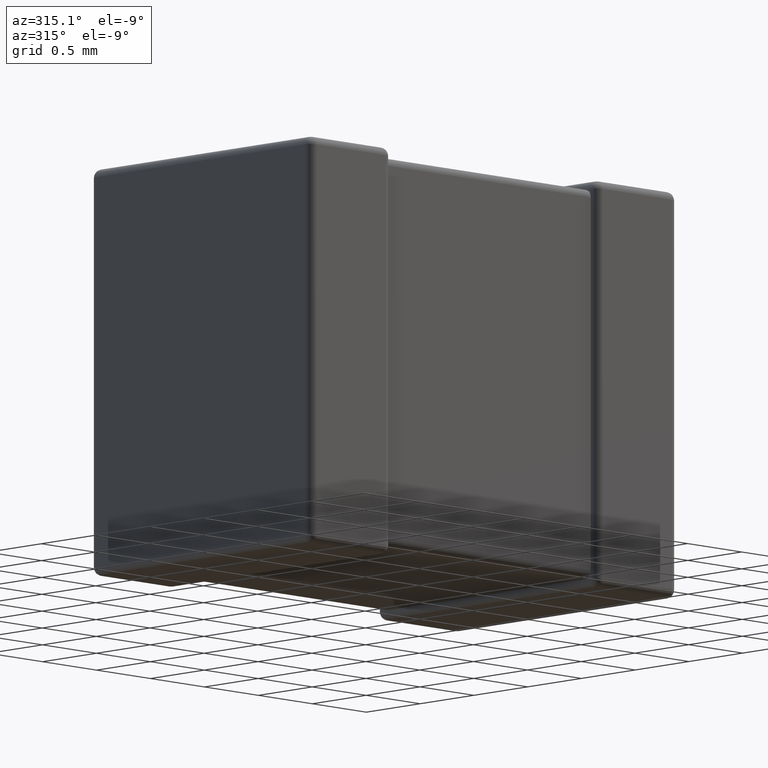
[diagram: clean part render]
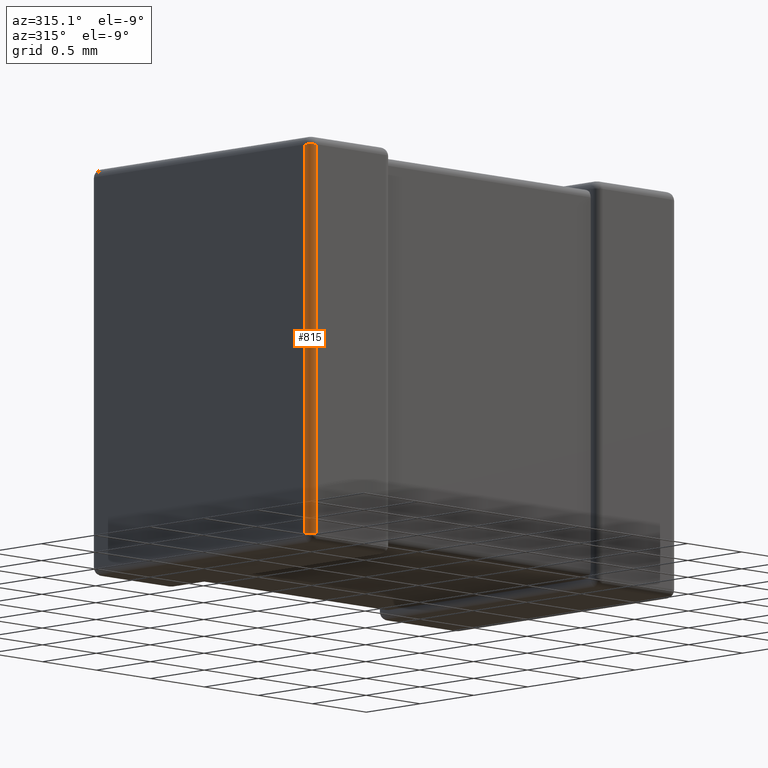
[diagram: same view with one face highlighted and labeled with its STEP entity id]
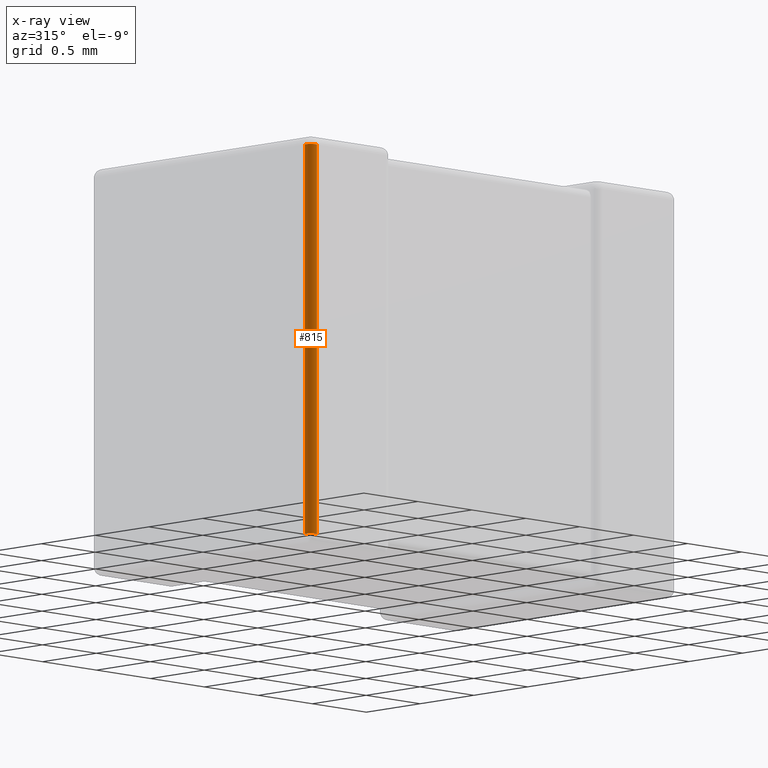
[diagram: x-ray of the same camera — body ghosted, the highlighted face saturated]
A machine part, auxiliary view. The second image highlights one B-rep face of the part: STEP entity #815.
The next image is the same camera in x-ray: the body ghosted, the highlighted face saturated — about 0% of this face is hidden behind the body in this view.
In plain terms, the highlighted cylindrical surface (edge-blend (fillet) strip) has radius 0.0562 mm, axis along (0, 0, 1).
Its self-contained STEP definition (entity closure, byte-faithful):
#6 = CARTESIAN_POINT ( 'NONE',  ( 0.05615999999999997383, 0.05616000000000000159, -2.643839999999999968 ) ) ;
#23 = VECTOR ( 'NONE', #3588, 1000.000000000000000 ) ;
#72 = DIRECTION ( 'NONE',  ( 0.000000000000000000, 0.000000000000000000, 1.000000000000000000 ) ) ;
#169 = AXIS2_PLACEMENT_3D ( 'NONE', #1382, #72, #3320 ) ;
#325 = DIRECTION ( 'NONE',  ( 1.000000000000000000, 0.000000000000000000, 0.000000000000000000 ) ) ;
#393 = DIRECTION ( 'NONE',  ( 0.000000000000000000, 0.000000000000000000, 1.000000000000000000 ) ) ;
#570 = EDGE_CURVE ( 'NONE', #1104, #2162, #3725, .T. ) ;
#677 = ORIENTED_EDGE ( 'NONE', *, *, #2413, .F. ) ;
#703 = ORIENTED_EDGE ( 'NONE', *, *, #1454, .F. ) ;
#815 = ADVANCED_FACE ( 'NONE', ( #2609 ), #3687, .T. ) ;
#910 = ORIENTED_EDGE ( 'NONE', *, *, #570, .F. ) ;
#1005 = CARTESIAN_POINT ( 'NONE',  ( 0.05615999999999997383, 0.000000000000000000, -0.05616000000000000159 ) ) ;
#1104 = VERTEX_POINT ( 'NONE', #1465 ) ;
#1136 = AXIS2_PLACEMENT_3D ( 'NONE', #2105, #393, #325 ) ;
#1171 = CARTESIAN_POINT ( 'NONE',  ( 0.05615999999999997383, 0.000000000000000000, -2.700000000000000178 ) ) ;
#1382 = CARTESIAN_POINT ( 'NONE',  ( 0.05615999999999997383, 0.05616000000000000159, 0.000000000000000000 ) ) ;
#1454 = EDGE_CURVE ( 'NONE', #2957, #4678, #3270, .T. ) ;
#1465 = CARTESIAN_POINT ( 'NONE',  ( 0.000000000000000000, 0.05616000000000000159, -0.05616000000000000159 ) ) ;
#1789 = DIRECTION ( 'NONE',  ( -1.000000000000000000, 0.000000000000000000, 0.000000000000000000 ) ) ;
#1808 = EDGE_LOOP ( 'NONE', ( #910, #4101, #703, #677 ) ) ;
#2105 = CARTESIAN_POINT ( 'NONE',  ( 0.05616000000000000159, 0.05616000000000000159, -0.05616000000000000159 ) ) ;
#2162 = VERTEX_POINT ( 'NONE', #1005 ) ;
#2262 = DIRECTION ( 'NONE',  ( 0.000000000000000000, 0.000000000000000000, -1.000000000000000000 ) ) ;
#2292 = AXIS2_PLACEMENT_3D ( 'NONE', #6, #4002, #1789 ) ;
#2314 = LINE ( 'NONE', #1171, #2892 ) ;
#2413 = EDGE_CURVE ( 'NONE', #2162, #2957, #2314, .T. ) ;
#2609 = FACE_OUTER_BOUND ( 'NONE', #1808, .T. ) ;
#2890 = EDGE_CURVE ( 'NONE', #4678, #1104, #3245, .T. ) ;
#2892 = VECTOR ( 'NONE', #2262, 1000.000000000000000 ) ;
#2957 = VERTEX_POINT ( 'NONE', #3635 ) ;
#3245 = LINE ( 'NONE', #4603, #23 ) ;
#3270 = CIRCLE ( 'NONE', #2292, 0.05616000000000000159 ) ;
#3320 = DIRECTION ( 'NONE',  ( 1.000000000000000000, 0.000000000000000000, 0.000000000000000000 ) ) ;
#3429 = CARTESIAN_POINT ( 'NONE',  ( 0.000000000000000000, 0.05616000000000000159, -2.643839999999999968 ) ) ;
#3588 = DIRECTION ( 'NONE',  ( -0.000000000000000000, -0.000000000000000000, 1.000000000000000000 ) ) ;
#3635 = CARTESIAN_POINT ( 'NONE',  ( 0.05615999999999997383, 0.000000000000000000, -2.643839999999999968 ) ) ;
#3687 = CYLINDRICAL_SURFACE ( 'NONE', #169, 0.05616000000000000159 ) ;
#3725 = CIRCLE ( 'NONE', #1136, 0.05616000000000000159 ) ;
#4002 = DIRECTION ( 'NONE',  ( -0.000000000000000000, -0.000000000000000000, -1.000000000000000000 ) ) ;
#4101 = ORIENTED_EDGE ( 'NONE', *, *, #2890, .F. ) ;
#4603 = CARTESIAN_POINT ( 'NONE',  ( 0.000000000000000000, 0.05616000000000000159, 0.000000000000000000 ) ) ;
#4678 = VERTEX_POINT ( 'NONE', #3429 ) ;